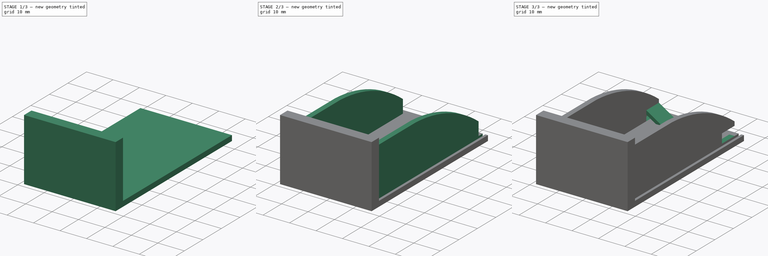
[diagram: build sequence overview — one tinted view per stage of 3, left to right]
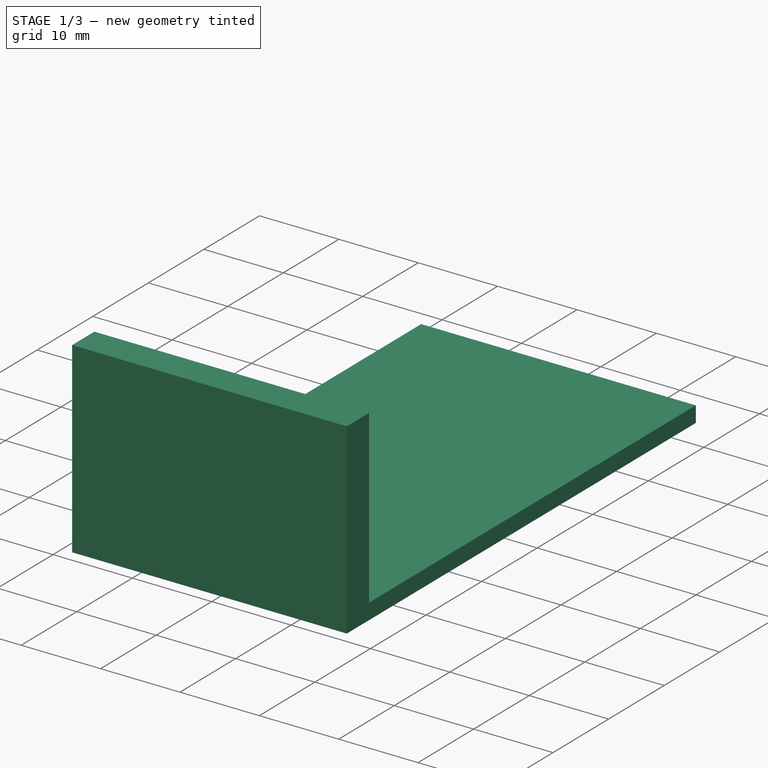
[diagram: stage 1 of 3 — iso view after this stage's code; geometry added in this stage tinted green]
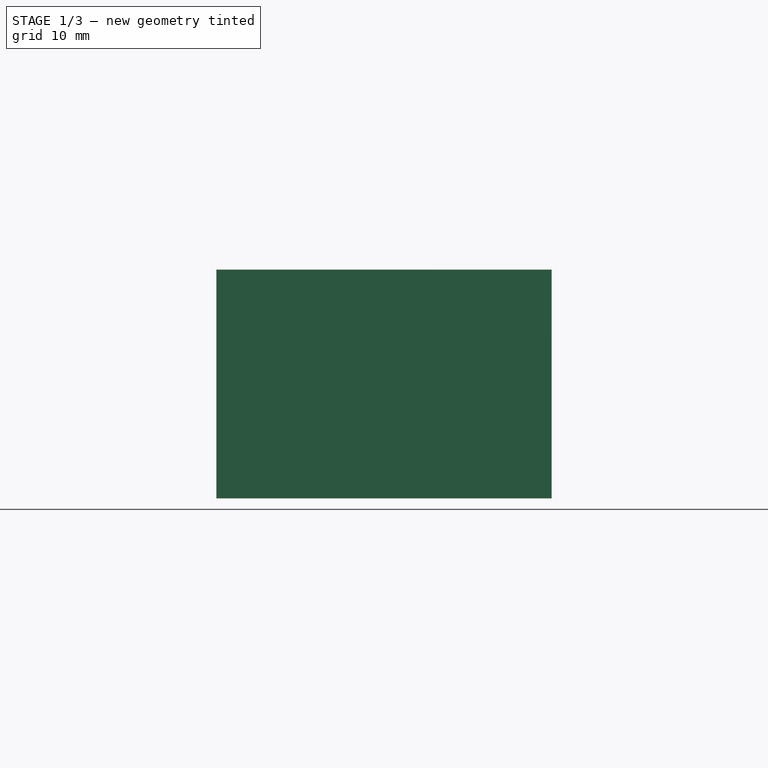
[diagram: stage 1 of 3 — front view after this stage's code; geometry added in this stage tinted green]
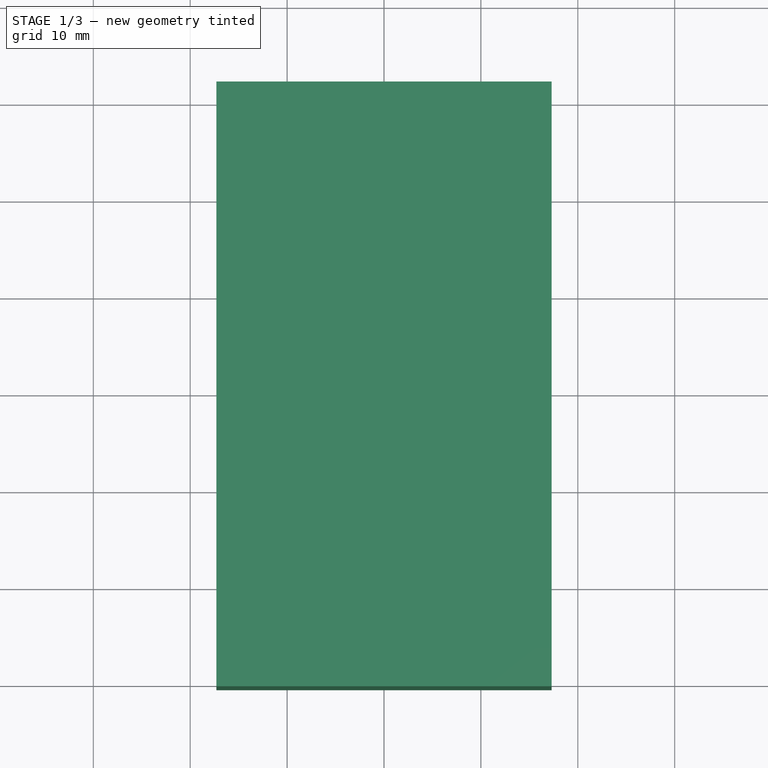
[diagram: stage 1 of 3 — top view after this stage's code; geometry added in this stage tinted green]
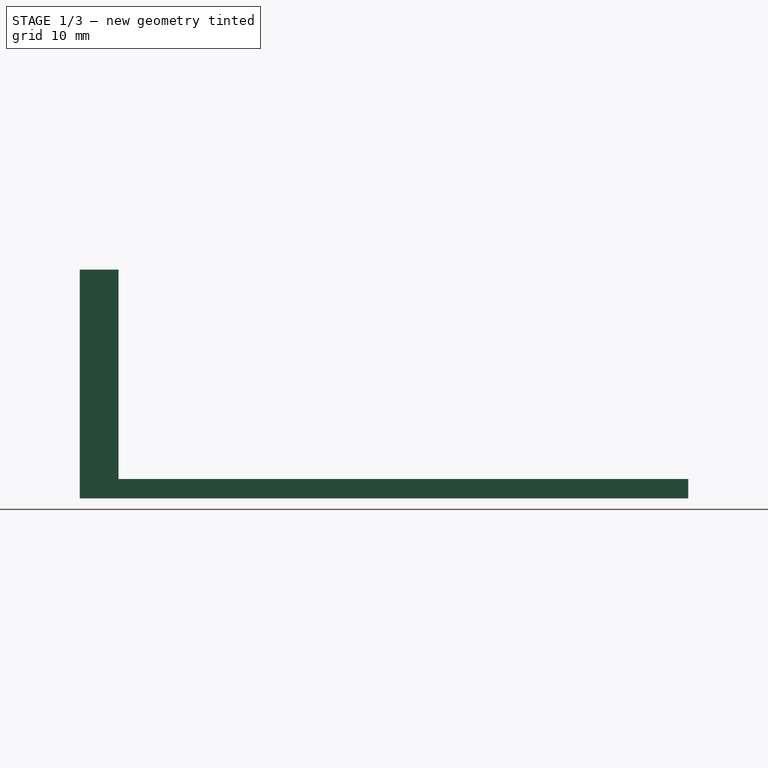
[diagram: stage 1 of 3 — right view after this stage's code; geometry added in this stage tinted green]
FCSTD DOCUMENT  (FreeCAD 0.17R13519 (Git))
Label: battery_case
License: All rights reserved
LicenseURL: http://en.wikipedia.org/wiki/All_rights_reserved
objects: Sketcher::SketchObject×7, PartDesign::Pad×4, PartDesign::Pocket×3, PartDesign::Body×1
note: 22 computed .brp shape members not serialized (recipe doc carries the construction recipe); baked Part::Feature solids carry a one-line shape summary decoded from their .brp

FEATURE [Sketcher::SketchObject] Sketch  label="base_plate_sketch"
  MapMode = 5
  Support = -> [XY_Plane]
  sketch-geometry (4):
    g0: LineSegment StartX=-17.3 StartY=32.4 StartZ=0 EndX=17.3 EndY=32.4 EndZ=0
    g1: LineSegment StartX=17.3 StartY=32.4 StartZ=0 EndX=17.3 EndY=-26.4 EndZ=0
    g2: LineSegment StartX=17.3 StartY=-26.4 StartZ=0 EndX=-17.3 EndY=-26.4 EndZ=0
    g3: LineSegment StartX=-17.3 StartY=-26.4 StartZ=0 EndX=-17.3 EndY=32.4 EndZ=0
  constraints (12):
    c: Coincident(g0,g1)
    c: Coincident(g1,g2)
    c: Coincident(g2,g3)
    c: Coincident(g3,g0)
    c: Horizontal(g0)
    c: Horizontal(g2)
    c: Vertical(g1)
    c: Vertical(g3)
    c: Symmetric(g0,g0,g-2)
    c: DistanceX(g2,g2) = 34.6
    c: DistanceY(g1,g1) = 58.8
    c: DistanceY(g2,g-1) = 26.4
FEATURE [PartDesign::Pad] Pad  label="base_plate_pad"
  Length = 2
  Length2 = 100
  Profile = -> Sketch
  Type = 0
FEATURE [Sketcher::SketchObject] Sketch001  label="base_back_sketch"
  MapMode = 5
  Support = -> [XY_Plane]
  sketch-geometry (4):
    g0: LineSegment StartX=-17.3 StartY=-26.4 StartZ=0 EndX=17.3 EndY=-26.4 EndZ=0
    g1: LineSegment StartX=17.3 StartY=-26.4 StartZ=0 EndX=17.3 EndY=-30.4 EndZ=0
    g2: LineSegment StartX=17.3 StartY=-30.4 StartZ=0 EndX=-17.3 EndY=-30.4 EndZ=0
    g3: LineSegment StartX=-17.3 StartY=-30.4 StartZ=0 EndX=-17.3 EndY=-26.4 EndZ=0
  constraints (12):
    c: Coincident(g0,g1)
    c: Coincident(g1,g2)
    c: Coincident(g2,g3)
    c: Coincident(g3,g0)
    c: Horizontal(g0)
    c: Horizontal(g2)
    c: Vertical(g1)
    c: Vertical(g3)
    c: DistanceY(g0,g-1) = 26.4
    c: DistanceY(g1,g1) = 4
    c: DistanceX(g2,g2) = 34.6
    c: Symmetric(g0,g0,g-2)
FEATURE [PartDesign::Pad] Pad001  label="base_back_pad"
  BaseFeature = -> Pad
  Length = 23.6
  Length2 = 100
  Profile = -> Sketch001
  Type = 0
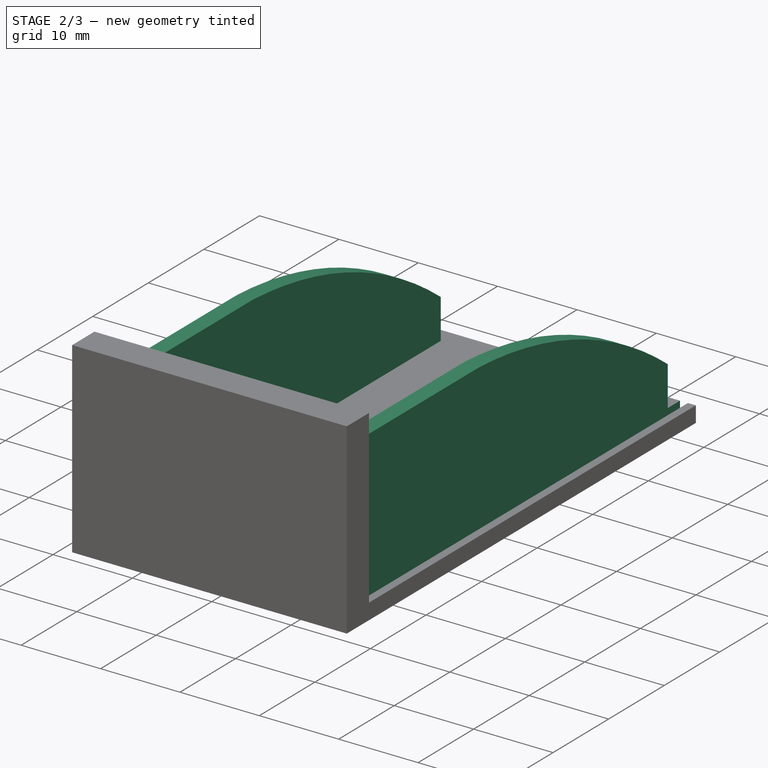
[diagram: stage 2 of 3 — iso view after this stage's code; geometry added in this stage tinted green]
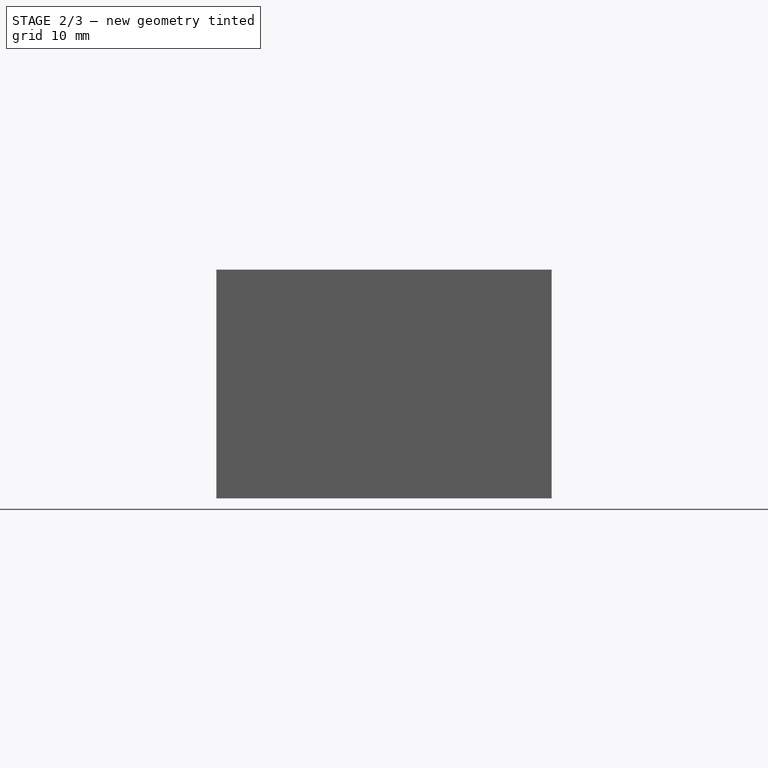
[diagram: stage 2 of 3 — front view after this stage's code; geometry added in this stage tinted green]
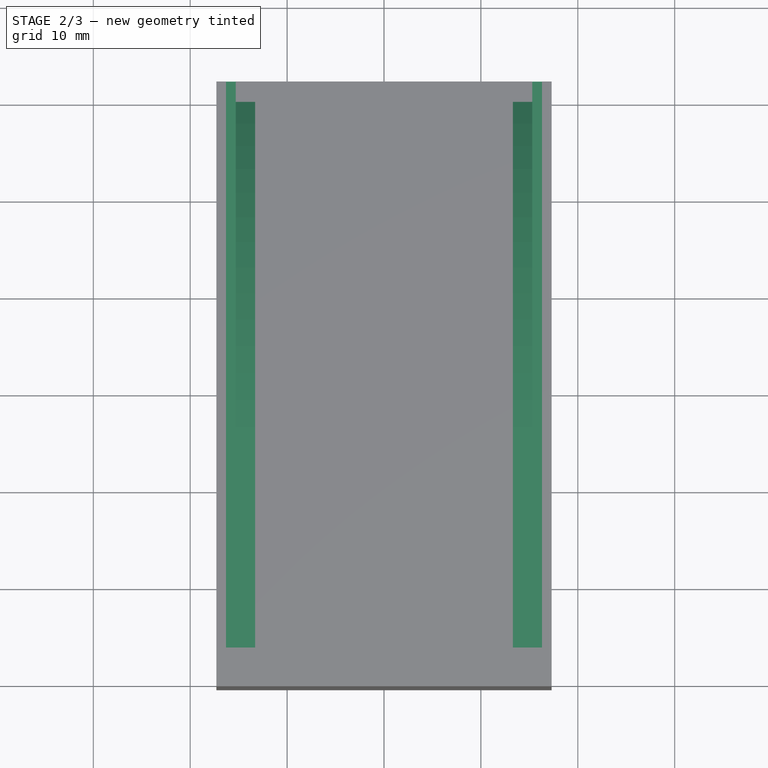
[diagram: stage 2 of 3 — top view after this stage's code; geometry added in this stage tinted green]
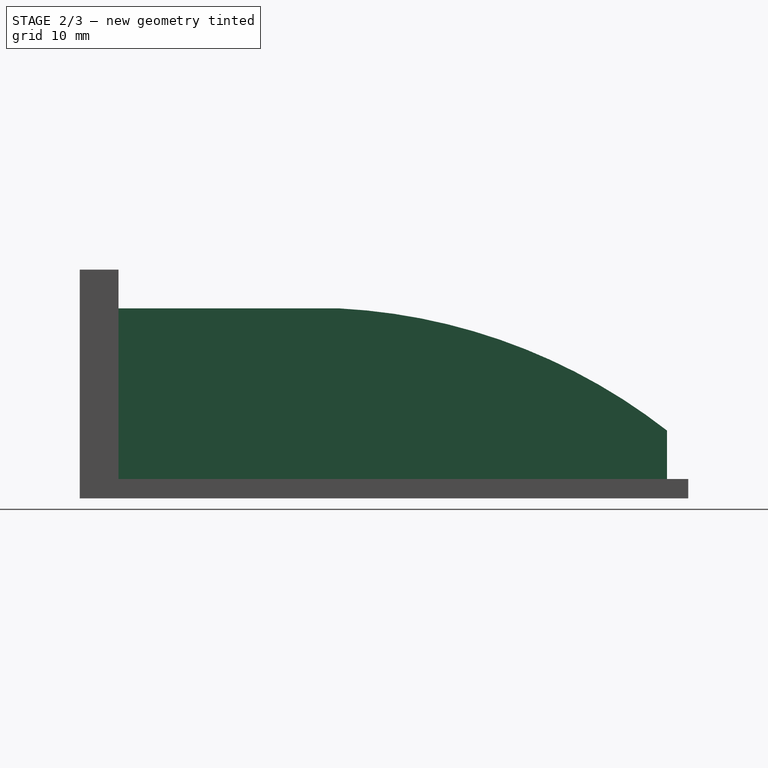
[diagram: stage 2 of 3 — right view after this stage's code; geometry added in this stage tinted green]
FEATURE [Sketcher::SketchObject] Sketch002  label="battery_cradle_sides_sketch"
  AttachmentOffset = pos=(0,0,30) rot=(0,0,1;0rad)
  MapMode = 5
  Placement = pos=(0,-30,-3e-12) rot=(1,0,0;1.5708rad)
  Support = -> [XZ_Plane]
  sketch-geometry (8):
    g0: LineSegment StartX=-15.3 StartY=19.6 StartZ=0 EndX=-13.3 EndY=19.6 EndZ=0
    g1: LineSegment StartX=-13.3 StartY=19.6 StartZ=0 EndX=-13.3 EndY=2 EndZ=0
    g2: LineSegment StartX=-13.3 StartY=2 StartZ=0 EndX=-15.3 EndY=2 EndZ=0
    g3: LineSegment StartX=-15.3 StartY=2 StartZ=0 EndX=-15.3 EndY=19.6 EndZ=0
    g4: LineSegment StartX=13.3 StartY=19.6 StartZ=0 EndX=15.3 EndY=19.6 EndZ=0
    g5: LineSegment StartX=15.3 StartY=19.6 StartZ=0 EndX=15.3 EndY=2 EndZ=0
    g6: LineSegment StartX=15.3 StartY=2 StartZ=0 EndX=13.3 EndY=2 EndZ=0
    g7: LineSegment StartX=13.3 StartY=2 StartZ=0 EndX=13.3 EndY=19.6 EndZ=0
  constraints (24):
    c: Coincident(g0,g1)
    c: Coincident(g1,g2)
    c: Coincident(g2,g3)
    c: Coincident(g3,g0)
    c: Horizontal(g0)
    c: Horizontal(g2)
    c: Vertical(g1)
    c: Vertical(g3)
    c: Coincident(g4,g5)
    c: Coincident(g5,g6)
    c: Coincident(g6,g7)
    c: Coincident(g7,g4)
    c: Horizontal(g4)
    c: Horizontal(g6)
    c: Vertical(g5)
    c: Vertical(g7)
    c: Equal(g0,g4)
    c: Equal(g1,g7)
    c: DistanceY(g3,g3) = 17.6
    c: DistanceX(g2,g2) = 2
    c: DistanceY(g-1,g5) = 2
    c: DistanceY(g-1,g1) = 2
    c: DistanceX(g0,g4) = 26.6
    c: Symmetric(g4,g0,g-2)
FEATURE [PartDesign::Pad] Pad002  label="battery_cradle_sides_pad"
  BaseFeature = -> Pad001
  Length = 60.2
  Length2 = 100
  Profile = -> Sketch002
  Reversed = true
  Type = 0
FEATURE [Sketcher::SketchObject] Sketch003  label="battery_cradle_arc_sketch"
  MapMode = 5
  Placement = pos=(0,0,0) rot=(0.57735,0.57735,0.57735;2.0944rad)
  Support = -> [YZ_Plane]
  sketch-geometry (3):
    g0: LineSegment StartX=-9.8 StartY=19.6 StartZ=0 EndX=30.2 EndY=19.6 EndZ=0
    g1: LineSegment StartX=30.2 StartY=19.6 StartZ=0 EndX=30.2 EndY=7 EndZ=0
    g2: ArcOfCircle CenterX=-6.6901 CenterY=-40.3193 CenterZ=0 NormalX=0 NormalY=0 NormalZ=1 AngleXU=0 Radius=60 StartAngle=0.90862 EndAngle=1.62265
  constraints (10):
    c: Horizontal(g0)
    c: Coincident(g1,g0)
    c: Vertical(g1)
    c: DistanceY(g-1,g1) = 7
    c: Coincident(g2,g0)
    c: Coincident(g2,g1)
    c: Radius(g2) = 60
    c: DistanceY(g-1,g0) = 19.6
    c: DistanceX(g-1,g1) = 30.2
    c: DistanceX(g0,g0) = 40
FEATURE [PartDesign::Pocket] Pocket  label="battery_cradle_arc_pocket"
  BaseFeature = -> Pad002
  Length = 30.6
  Length2 = 100
  Midplane = true
  Profile = -> Sketch003
  Type = 0
FEATURE [Sketcher::SketchObject] Sketch004  label="cover_track_sketch"
  AttachmentOffset = pos=(0,0,-3) rot=(0,0,1;0rad)
  MapMode = 5
  Placement = pos=(0,3,0) rot=(1,0,0;1.5708rad)
  Support = -> [XZ_Plane]
  sketch-geometry (8):
    g0: LineSegment StartX=-15.3 StartY=1 StartZ=0 EndX=-16.3 EndY=1 EndZ=0
    g1: LineSegment StartX=-16.3 StartY=1 StartZ=0 EndX=-16.3 EndY=21.8 EndZ=0
    g2: LineSegment StartX=16.3 StartY=21.8 StartZ=0 EndX=16.3 EndY=1 EndZ=0
    g3: LineSegment StartX=16.3 StartY=1 StartZ=0 EndX=15.3 EndY=1 EndZ=0
    g4: LineSegment StartX=-16.3 StartY=21.8 StartZ=0 EndX=16.3 EndY=21.8 EndZ=0
    g5: LineSegment StartX=15.3 StartY=19.6 StartZ=0 EndX=-15.3 EndY=19.6 EndZ=0
    g6: LineSegment StartX=-15.3 StartY=19.6 StartZ=0 EndX=-15.3 EndY=1 EndZ=0
    g7: LineSegment StartX=15.3 StartY=1 StartZ=0 EndX=15.3 EndY=19.6 EndZ=0
  constraints (24):
    c: Coincident(g0,g1)
    c: Horizontal(g0)
    c: Vertical(g1)
    c: Coincident(g2,g3)
    c: Horizontal(g3)
    c: Vertical(g2)
    c: DistanceY(g-1,g3) = 1
    c: DistanceY(g-1,g0) = 1
    c: DistanceX(g0,g0) = 1
    c: Horizontal(g4)
    c: Horizontal(g5)
    c: Symmetric(g5,g5,g-2)
    c: DistanceY(g-1,g5) = 19.6
    c: Coincident(g6,g5)
    c: Coincident(g6,g0)
    c: Vertical(g6)
    c: Coincident(g7,g3)
    c: Coincident(g7,g5)
    c: Vertical(g7)
    c: Coincident(g4,g1)
    c: Coincident(g4,g2)
    c: Equal(g0,g3)
    c: DistanceX(g5,g5) = 30.6
    c: DistanceY(g-1,g2) = 21.8
FEATURE [PartDesign::Pocket] Pocket001  label="cover_track_pad"
  BaseFeature = -> Pocket
  Length = 61.8
  Length2 = 100
  Midplane = true
  Profile = -> Sketch004
  Type = 0
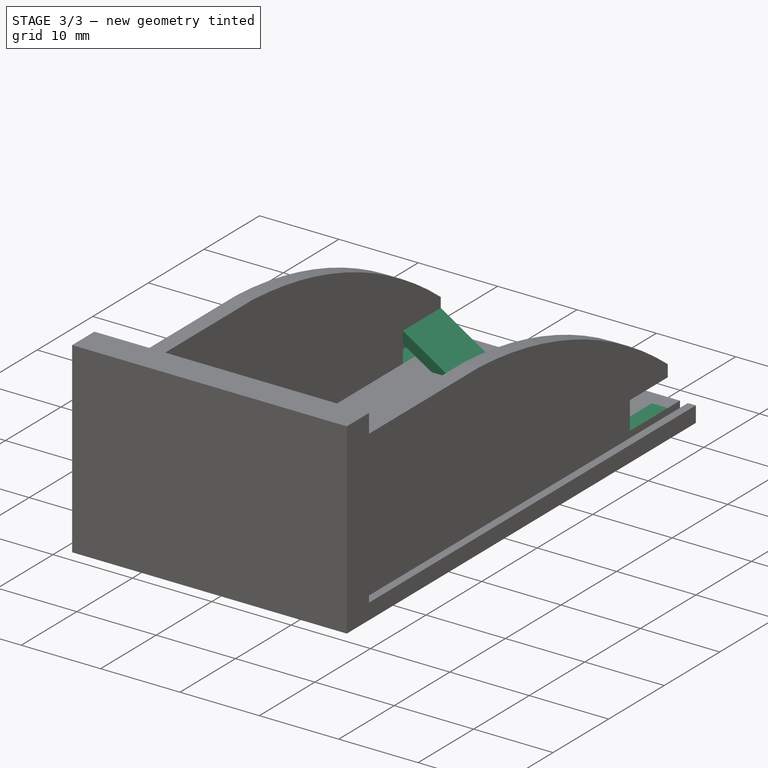
[diagram: stage 3 of 3 — iso view after this stage's code; geometry added in this stage tinted green]
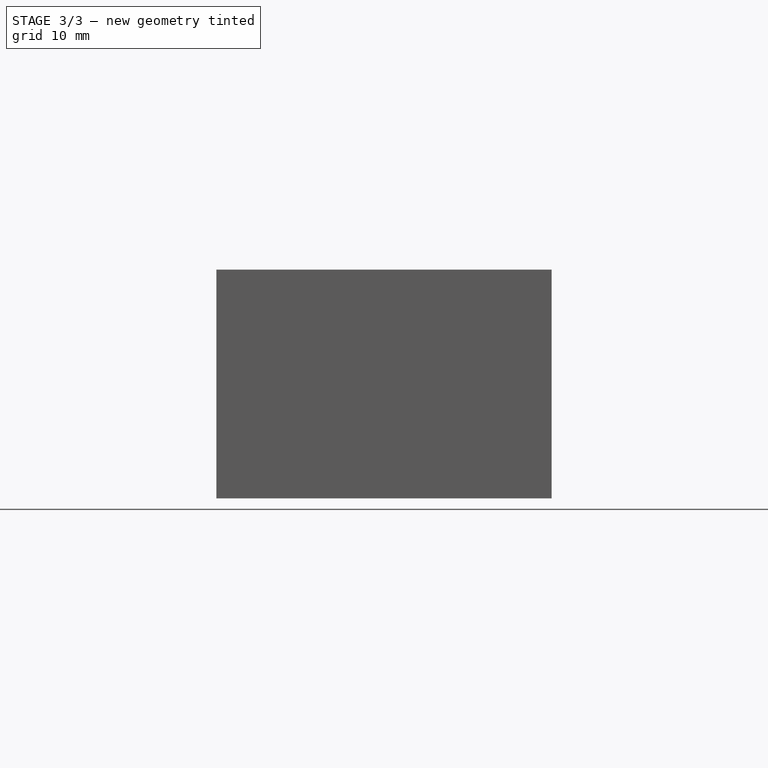
[diagram: stage 3 of 3 — front view after this stage's code; geometry added in this stage tinted green]
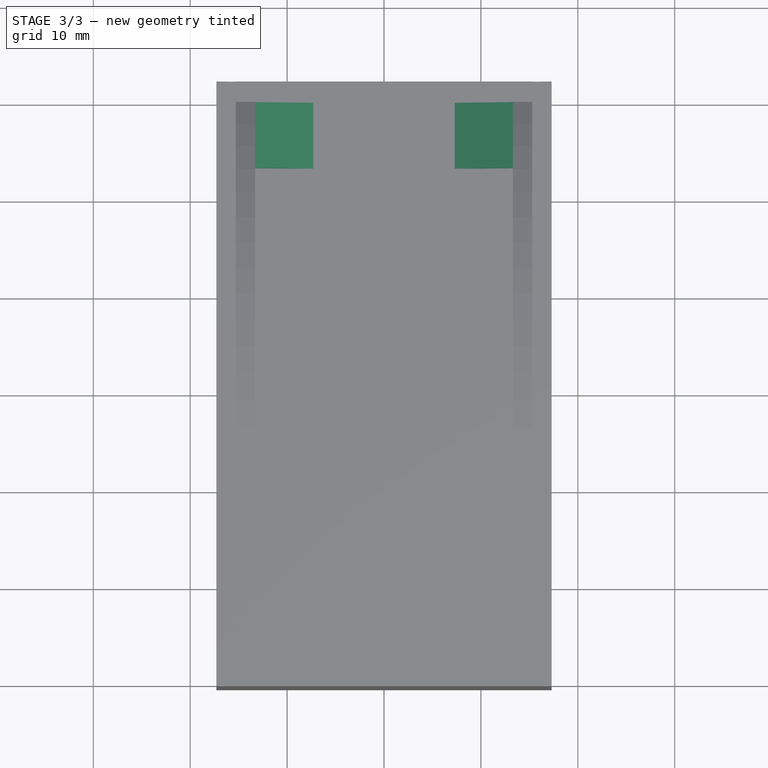
[diagram: stage 3 of 3 — top view after this stage's code; geometry added in this stage tinted green]
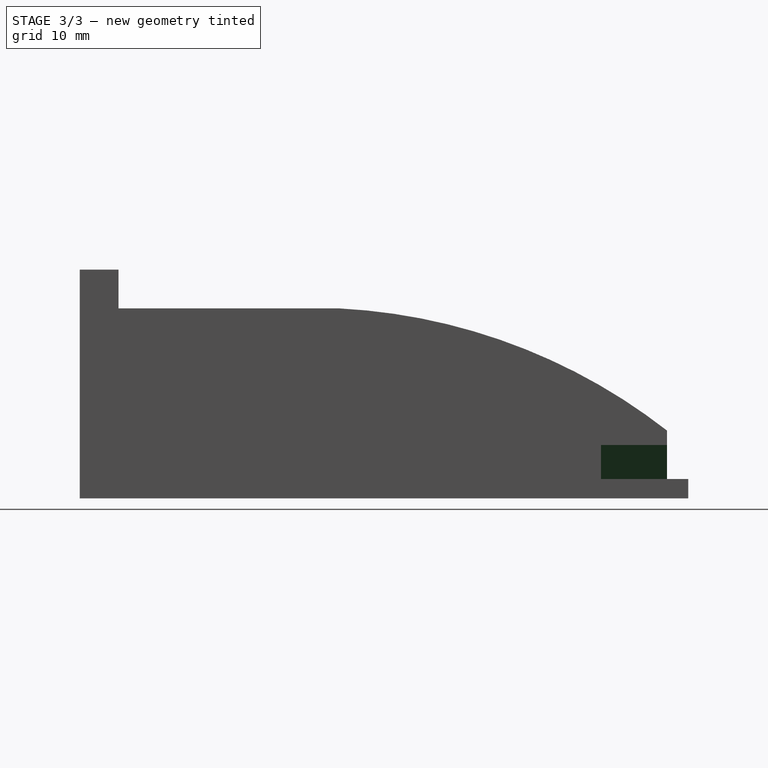
[diagram: stage 3 of 3 — right view after this stage's code; geometry added in this stage tinted green]
FEATURE [Sketcher::SketchObject] Sketch005  label="clip_sketch"
  AttachmentOffset = pos=(0,0,-23.4) rot=(0,0,1;0rad)
  MapMode = 5
  Placement = pos=(0,23.4,2e-12) rot=(1,0,0;1.5708rad)
  Support = -> [XZ_Plane]
  sketch-geometry (12):
    g0: LineSegment [constr] StartX=-15.3 StartY=2 StartZ=0 EndX=-15.3 EndY=7 EndZ=0
    g1: LineSegment [constr] StartX=-15.3 StartY=2 StartZ=0 EndX=-7.3 EndY=2 EndZ=0
    g2: LineSegment StartX=-15.3 StartY=7 StartZ=0 EndX=-7.3 EndY=2 EndZ=0
    g3: LineSegment [constr] StartX=15.3 StartY=2 StartZ=0 EndX=15.3 EndY=7 EndZ=0
    g4: LineSegment [constr] StartX=15.3 StartY=2 StartZ=0 EndX=7.3 EndY=2 EndZ=0
    g5: LineSegment StartX=15.3 StartY=7 StartZ=0 EndX=7.3 EndY=2 EndZ=0
    g6: LineSegment StartX=-15.3 StartY=7 StartZ=0 EndX=-15.3 EndY=5.5 EndZ=0
    g7: LineSegment StartX=-7.3 StartY=2 StartZ=0 EndX=-9.7 EndY=2 EndZ=0
    g8: LineSegment StartX=-15.3 StartY=5.5 StartZ=0 EndX=-9.7 EndY=2 EndZ=0
    g9: LineSegment StartX=15.3 StartY=7 StartZ=0 EndX=15.3 EndY=5.5 EndZ=0
    g10: LineSegment StartX=7.3 StartY=2 StartZ=0 EndX=9.7 EndY=2 EndZ=0
    g11: LineSegment StartX=15.3 StartY=5.5 StartZ=0 EndX=9.7 EndY=2 EndZ=0
  constraints (33):
    c: Vertical(g0)
    c: Coincident(g1,g0)
    c: Horizontal(g1)
    c: Coincident(g2,g0)
    c: Coincident(g2,g1)
    c: Vertical(g3)
    c: Coincident(g4,g3)
    c: Horizontal(g4)
    c: Coincident(g5,g3)
    c: Coincident(g5,g4)
    c: Symmetric(g4,g1,g-2)
    c: DistanceY(g-1,g3) = 2
    c: DistanceY(g0,g0) = 5
    c: DistanceX(g0,g3) = 30.6
    c: Equal(g1,g4)
    c: Equal(g3,g0)
    c: DistanceX(g1,g1) = 8
    c: Coincident(g6,g0)
    c: Vertical(g6)
    c: Coincident(g7,g1)
    c: Horizontal(g7)
    c: Coincident(g8,g6)
    c: Coincident(g8,g7)
    c: Coincident(g9,g3)
    c: Vertical(g9)
    c: Coincident(g10,g4)
    c: Horizontal(g10)
    c: Coincident(g11,g9)
    c: Coincident(g11,g10)
    c: Equal(g7,g10)
    c: Equal(g9,g6)
    c: Parallel(g11,g5)
    c: DistanceY(g3,g9) = 3.5
FEATURE [Sketcher::SketchObject] Sketch006  label="clip_pocket_sketch"
  MapMode = 5
  Placement = pos=(0,0,0) rot=(0.57735,0.57735,0.57735;2.0944rad)
  Support = -> [YZ_Plane]
  sketch-geometry (4):
    g0: LineSegment StartX=23.4 StartY=5.5 StartZ=0 EndX=30.2 EndY=5.5 EndZ=0
    g1: LineSegment StartX=30.2 StartY=5.5 StartZ=0 EndX=30.2 EndY=2 EndZ=0
    g2: LineSegment StartX=30.2 StartY=2 StartZ=0 EndX=23.4 EndY=2 EndZ=0
    g3: LineSegment StartX=23.4 StartY=2 StartZ=0 EndX=23.4 EndY=5.5 EndZ=0
  constraints (12):
    c: Coincident(g0,g1)
    c: Coincident(g1,g2)
    c: Coincident(g2,g3)
    c: Coincident(g3,g0)
    c: Horizontal(g0)
    c: Horizontal(g2)
    c: Vertical(g1)
    c: Vertical(g3)
    c: DistanceX(g0,g0) = 6.8
    c: DistanceY(g1,g1) = 3.5
    c: DistanceY(g-1,g1) = 2
    c: DistanceX(g-1,g2) = 23.4
FEATURE [PartDesign::Pocket] Pocket002  label="clip_pocket"
  BaseFeature = -> Pocket001
  Length = 30.6
  Length2 = 100
  Midplane = true
  Profile = -> Sketch006
  Type = 0
FEATURE [PartDesign::Pad] Pad003  label="clip_pad"
  BaseFeature = -> Pocket002
  Length = 6.8
  Length2 = 100
  Profile = -> Sketch005
  Reversed = true
  Type = 0
FEATURE [PartDesign::Body] Body
  Group = -> [Sketch,Pad,Sketch001,Pad001,Sketch002,Pad002,Sketch003,Pocket,Sketch004,Pocket001,Sketch006,Pocket002,Sketch005,Pad003]
  Origin = -> Origin
  Tip = -> Pad003
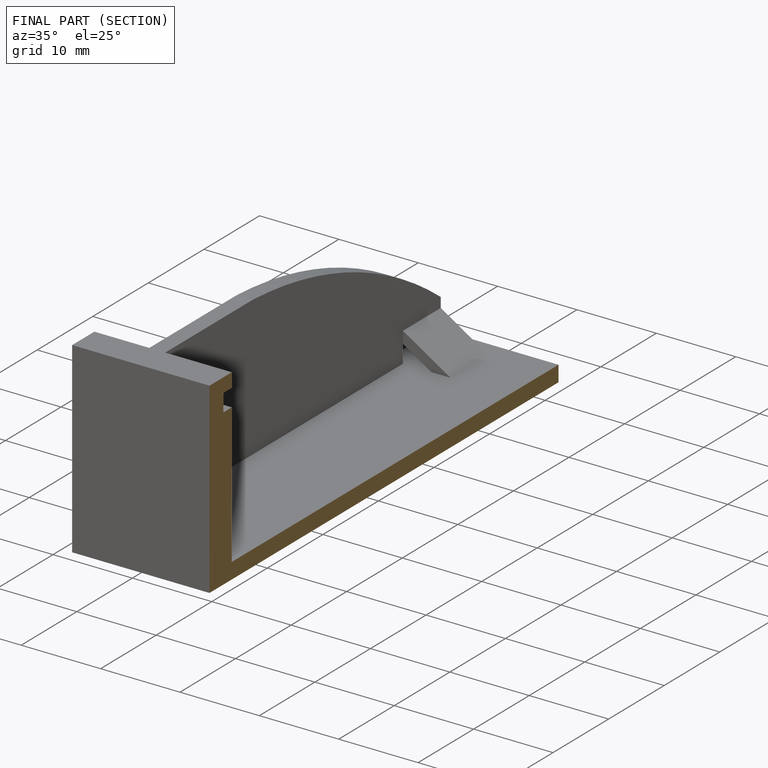
[diagram: finished part — half-section view (interior)]
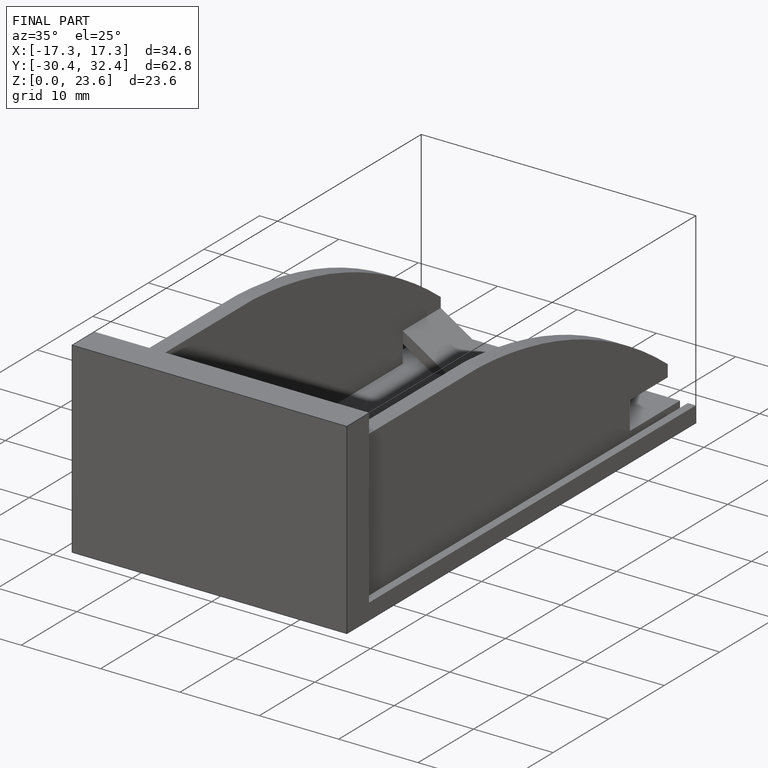
[diagram: finished part — iso view with bounding-box wireframe]
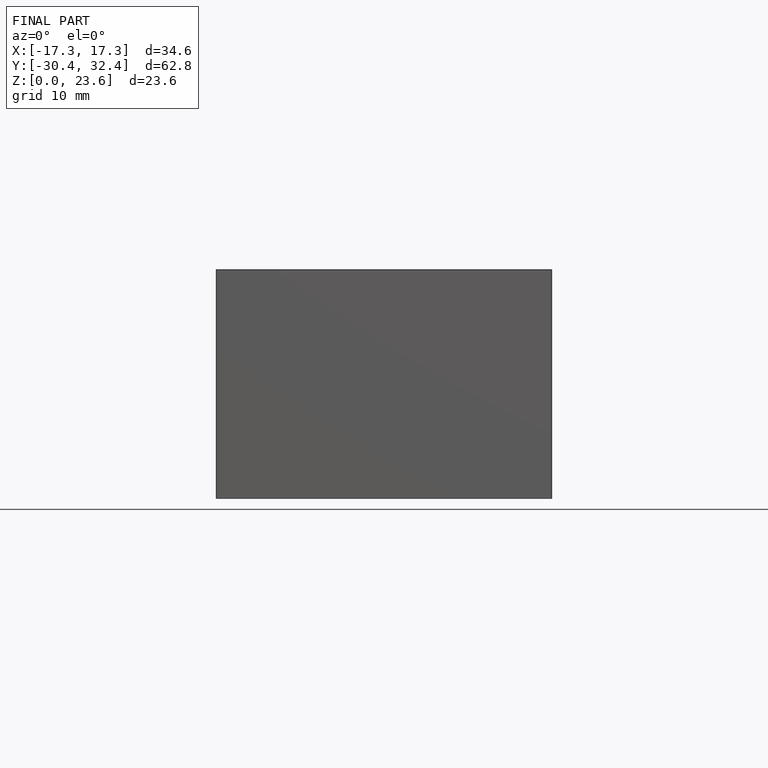
[diagram: finished part — front view with bounding-box wireframe]
